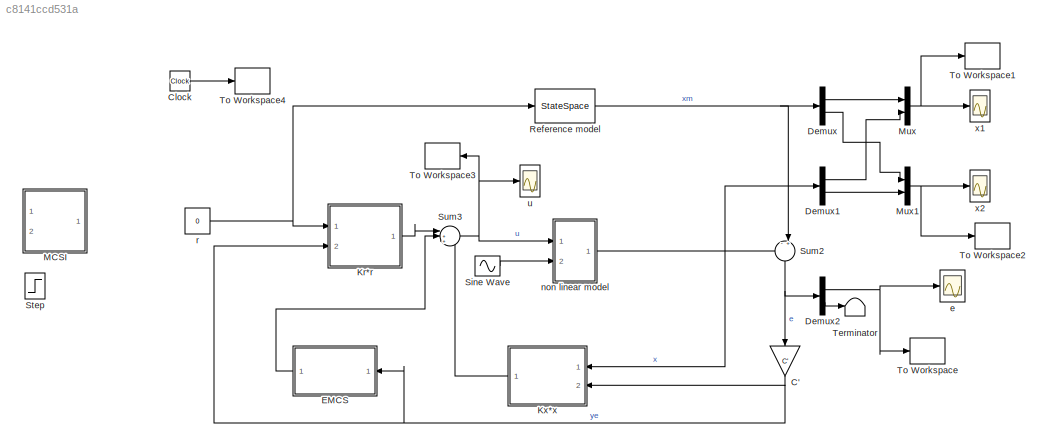
MODEL slx_c8141ccd531a
KIND model
CONFIG AbsTol = auto
CONFIG EnableMultiTasking = off
CONFIG FixedStep = auto
CONFIG InitFcn = clear\nclc\n%% dati\n%Plant\nw0 = 5.278;\nalfa1 = w0^2;\nalfa3 = -1.402*w0^2;\nalfa5 = 0.271*w0^2;\nmu1 = 0.086;\nmu3 = 0.1080;\n%% MRAC MCS\n% model reference\nta1 = 15;\nzita = 0.62;\nwn = -log(0.01)/(zita*ta1);\nAm = [0 1; -wn^2 -2*zita*wn];\nBm = [0; wn^2];\nCm = eye(2);\nDm = [0; 0];\n% control law\nB = [0; 1];\nQ = eye(2);\nP = lyap(Am',Q);\nC = P*B;\nbeta = 5;\nalfa = 10*beta;\n%disturbo\nAd = 0;\nfd = 2;\n%EMCS\ngamma ...<+43ch>
CONFIG MaxStep = 1e-3
CONFIG MinStep = auto
CONFIG RelTol = 1e-3
CONFIG SampleTimeConstraint = Unconstrained
CONFIG SolverName = VariableStepAuto
CONFIG StartTime = 0.0
CONFIG StopTime = 25
BLOCK [Gain] C'
  Gain = C'
  Multiplication = Matrix(K*u)
  NameLocation = left
BLOCK [Clock] Clock
BLOCK [Demux] Demux
  Outputs = 2
  Ports = [1, 2]
BLOCK [Demux] Demux1
  Outputs = 2
  Ports = [1, 2]
BLOCK [Demux] Demux2
  Outputs = 2
  Ports = [1, 2]
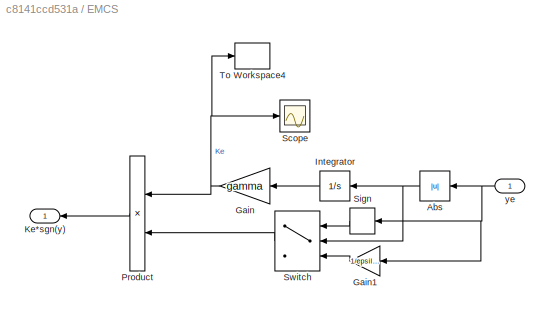
BLOCK [SubSystem] EMCS
  Ports = [1, 1]
  RequestExecContextInheritance = off
BLOCK [Abs] EMCS/Abs
  NameLocation = top
  SaturateOnIntegerOverflow = off
BLOCK [Gain] EMCS/Gain
  Gain = gamma
  NameLocation = top
BLOCK [Gain] EMCS/Gain1
  Gain = 1/epsilon
  NameLocation = top
BLOCK [Integrator] EMCS/Integrator
  NameLocation = top
  Ports = [1, 1]
BLOCK [Outport] EMCS/Ke*sgn(y)
BLOCK [Product] EMCS/Product
  NameLocation = top
  Ports = [2, 1]
BLOCK [Scope] EMCS/Scope
  Floating = off
  NumInputPorts = 1
  Ports = [1]
  ScopeSpecificationString = Simulink.scopes.TimeScopeBlockCfg('CurrentConfiguration', extmgr.ConfigurationSet(extmgr.Configuration('Core','General UI',true),extmgr.Configuration('Core','Source UI',true),extmgr.Configuration('Sources','WiredSimulink',true,'DataLoggingVariableName','ScopeData1'),extmgr.Configuration('Visuals','Time Domain',true,'SerializedDisplays',{struct('MinYLimReal','-0.78004','MaxYLimReal','7.02034','YLab...<+1390ch>
BLOCK [Signum] EMCS/Sign
  NameLocation = top
BLOCK [Switch] EMCS/Switch
  Criteria = u2 > Threshold
  InputSameDT = off
  NameLocation = top
  SaturateOnIntegerOverflow = off
  Threshold = epsilon
BLOCK [ToWorkspace] EMCS/To Workspace4
  FixptAsFi = on
  MaxDataPoints = inf
  Ports = [1]
  SampleTime = -1
  Save2DSignal = 2-D array (concatenate along first dimension)
  VariableName = Ke
BLOCK [Inport] EMCS/ye
  NameLocation = top
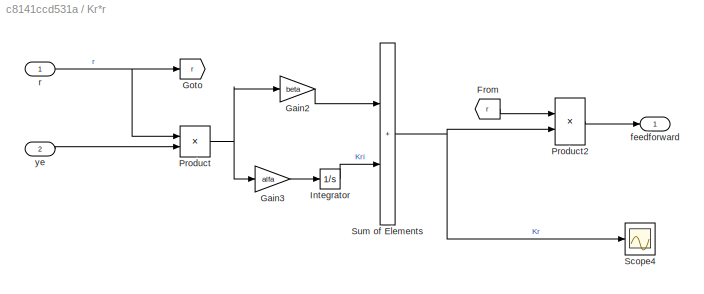
BLOCK [SubSystem] Kr*r
  Ports = [2, 1]
  RequestExecContextInheritance = off
BLOCK [From] Kr*r/From
  GotoTag = r
BLOCK [Gain] Kr*r/Gain2
  Gain = beta
BLOCK [Gain] Kr*r/Gain3
  Gain = alfa
BLOCK [Goto] Kr*r/Goto
  GotoTag = r
BLOCK [Integrator] Kr*r/Integrator
  Ports = [1, 1]
BLOCK [Product] Kr*r/Product
  Ports = [2, 1]
BLOCK [Product] Kr*r/Product2
  Ports = [2, 1]
BLOCK [Scope] Kr*r/Scope4
  Floating = off
  NumInputPorts = 1
  Ports = [1]
  ScopeSpecificationString = Simulink.scopes.TimeScopeBlockCfg('CurrentConfiguration', extmgr.ConfigurationSet(extmgr.Configuration('Core','General UI',true),extmgr.Configuration('Core','Source UI',true),extmgr.Configuration('Sources','WiredSimulink',true,'DataLoggingVariableName','ScopeData2'),extmgr.Configuration('Visuals','Time Domain',true,'SerializedDisplays',{struct('MinYLimReal','-1.00000','MaxYLimReal','1.00000','YLab...<+1390ch>
BLOCK [Sum] Kr*r/Sum of Elements
  IconShape = rectangular
  Ports = [2, 1]
BLOCK [Outport] Kr*r/feedforward
BLOCK [Inport] Kr*r/r
BLOCK [Inport] Kr*r/ye
  Port = 2
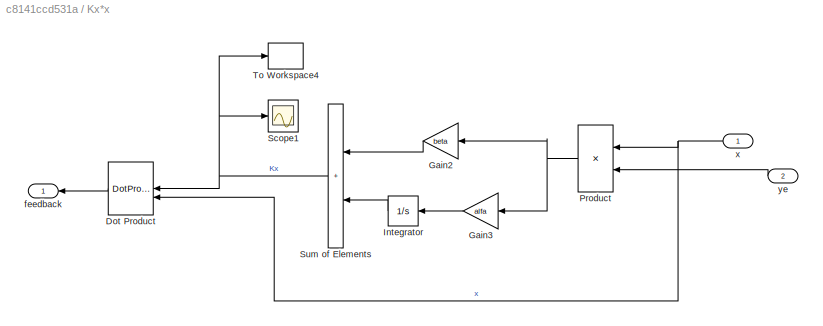
BLOCK [SubSystem] Kx*x
  NameLocation = top
  Ports = [2, 1]
  RequestExecContextInheritance = off
BLOCK [DotProduct] Kx*x/Dot Product
  NameLocation = top
  OutDataTypeStr = Inherit: Inherit via internal rule
BLOCK [Gain] Kx*x/Gain2
  Gain = beta
  NameLocation = top
BLOCK [Gain] Kx*x/Gain3
  Gain = alfa
  NameLocation = top
BLOCK [Integrator] Kx*x/Integrator
  NameLocation = top
  Ports = [1, 1]
BLOCK [Product] Kx*x/Product
  NameLocation = top
  Ports = [2, 1]
BLOCK [Scope] Kx*x/Scope1
  Floating = off
  NumInputPorts = 1
  Ports = [1]
  ScopeSpecificationString = Simulink.scopes.TimeScopeBlockCfg('CurrentConfiguration', extmgr.ConfigurationSet(extmgr.Configuration('Core','General UI',true),extmgr.Configuration('Core','Source UI',true),extmgr.Configuration('Sources','WiredSimulink',true,'DataLoggingVariableName','ScopeData5'),extmgr.Configuration('Visuals','Time Domain',true,'SerializedDisplays',{struct('MinYLimReal','-25.91284','MaxYLimReal','10.02066','YL...<+1449ch>
BLOCK [Sum] Kx*x/Sum of Elements
  IconShape = rectangular
  NameLocation = top
  Ports = [2, 1]
BLOCK [ToWorkspace] Kx*x/To Workspace4
  FixptAsFi = on
  MaxDataPoints = inf
  Ports = [1]
  SampleTime = -1
  Save2DSignal = 2-D array (concatenate along first dimension)
  VariableName = Kx
BLOCK [Outport] Kx*x/feedback
BLOCK [Inport] Kx*x/x
BLOCK [Inport] Kx*x/ye
  Port = 2
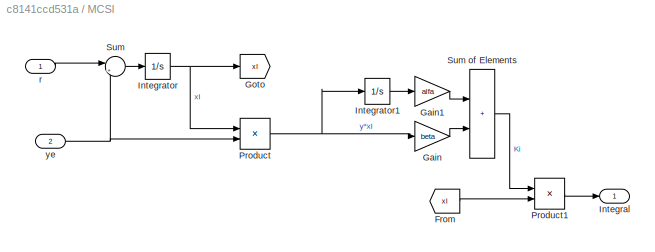
BLOCK [SubSystem] MCSI
  Commented = on
  Ports = [2, 1]
  RequestExecContextInheritance = off
BLOCK [From] MCSI/From
  GotoTag = xI
BLOCK [Gain] MCSI/Gain
  Gain = beta
BLOCK [Gain] MCSI/Gain1
  Gain = alfa
BLOCK [Goto] MCSI/Goto
  GotoTag = xI
BLOCK [Outport] MCSI/Integral
BLOCK [Integrator] MCSI/Integrator
  Ports = [1, 1]
BLOCK [Integrator] MCSI/Integrator1
  Ports = [1, 1]
BLOCK [Product] MCSI/Product
  Ports = [2, 1]
BLOCK [Product] MCSI/Product1
  Ports = [2, 1]
BLOCK [Sum] MCSI/Sum
  Inputs = |+-
  Ports = [2, 1]
BLOCK [Sum] MCSI/Sum of Elements
  IconShape = rectangular
  Ports = [2, 1]
BLOCK [Inport] MCSI/r
BLOCK [Inport] MCSI/ye
  NameLocation = top
  Port = 2
BLOCK [Mux] Mux
  DisplayOption = bar
  Inputs = 2
  Ports = [2, 1]
BLOCK [Mux] Mux1
  DisplayOption = bar
  Inputs = 2
  Ports = [2, 1]
BLOCK [StateSpace] Reference model
  A = Am
  B = Bm
  C = Cm
  D = Dm
  InitialCondition = [-1 -0.2]
  Ports = [1, 1]
BLOCK [Sin] Sine Wave
  Amplitude = Ad*0
  Frequency = fd
  Ports = [0, 1]
  SampleTime = 0
BLOCK [Step] Step
  After = 5
  Commented = on
  SampleTime = 0
  Time = 15
BLOCK [Sum] Sum2
  Inputs = -+|
  NameLocation = left
  Ports = [2, 1]
BLOCK [Sum] Sum3
  Inputs = |+++
  Ports = [3, 1]
BLOCK [Terminator] Terminator
BLOCK [ToWorkspace] To Workspace
  FixptAsFi = on
  MaxDataPoints = inf
  Ports = [1]
  SampleTime = -1
  Save2DSignal = 2-D array (concatenate along first dimension)
  VariableName = e
BLOCK [ToWorkspace] To Workspace1
  FixptAsFi = on
  MaxDataPoints = inf
  Ports = [1]
  SampleTime = -1
  Save2DSignal = 2-D array (concatenate along first dimension)
  VariableName = x1
BLOCK [ToWorkspace] To Workspace2
  FixptAsFi = on
  MaxDataPoints = inf
  Ports = [1]
  SampleTime = -1
  Save2DSignal = 2-D array (concatenate along first dimension)
  VariableName = x2
BLOCK [ToWorkspace] To Workspace3
  FixptAsFi = on
  MaxDataPoints = inf
  NameLocation = top
  Ports = [1]
  SampleTime = -1
  Save2DSignal = 2-D array (concatenate along first dimension)
  VariableName = u
BLOCK [ToWorkspace] To Workspace4
  FixptAsFi = on
  MaxDataPoints = inf
  Ports = [1]
  SampleTime = -1
  Save2DSignal = 2-D array (concatenate along first dimension)
  VariableName = t
BLOCK [Scope] e
  Floating = off
  NumInputPorts = 1
  Ports = [1]
  ScopeSpecificationString = Simulink.scopes.TimeScopeBlockCfg('CurrentConfiguration', extmgr.ConfigurationSet(extmgr.Configuration('Core','General UI',true),extmgr.Configuration('Core','Source UI',true),extmgr.Configuration('Sources','WiredSimulink',true,'DataLoggingVariableName','ScopeData3'),extmgr.Configuration('Visuals','Time Domain',true,'SerializedDisplays',{struct('MinYLimReal','-0.19375','MaxYLimReal','0.27211','YLab...<+1465ch>
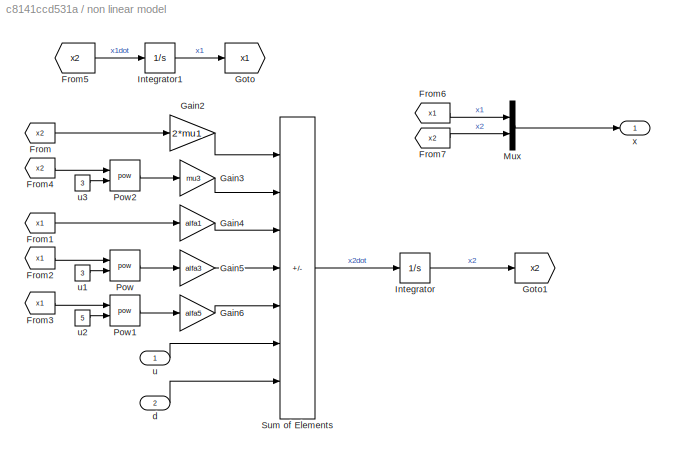
BLOCK [SubSystem] non linear model
  Ports = [2, 1]
  RequestExecContextInheritance = off
BLOCK [From] non linear model/From
  GotoTag = x2
BLOCK [From] non linear model/From1
  GotoTag = x1
BLOCK [From] non linear model/From2
  GotoTag = x1
BLOCK [From] non linear model/From3
  GotoTag = x1
BLOCK [From] non linear model/From4
  GotoTag = x2
BLOCK [From] non linear model/From5
  GotoTag = x2
BLOCK [From] non linear model/From6
  GotoTag = x1
BLOCK [From] non linear model/From7
  GotoTag = x2
BLOCK [Gain] non linear model/Gain2
  Gain = 2*mu1
BLOCK [Gain] non linear model/Gain3
  Gain = mu3
BLOCK [Gain] non linear model/Gain4
  Gain = alfa1
BLOCK [Gain] non linear model/Gain5
  Gain = alfa3
BLOCK [Gain] non linear model/Gain6
  Gain = alfa5
BLOCK [Goto] non linear model/Goto
  GotoTag = x1
BLOCK [Goto] non linear model/Goto1
  GotoTag = x2
BLOCK [Integrator] non linear model/Integrator
  InitialCondition = -0.18
  Ports = [1, 1]
BLOCK [Integrator] non linear model/Integrator1
  InitialCondition = -1.2
  Ports = [1, 1]
BLOCK [Mux] non linear model/Mux
  DisplayOption = bar
  Inputs = 2
  Ports = [2, 1]
BLOCK [Math] non linear model/Pow
  Operator = pow
  Ports = [2, 1]
  RndMeth = Zero
BLOCK [Math] non linear model/Pow1
  Operator = pow
  Ports = [2, 1]
  RndMeth = Zero
BLOCK [Math] non linear model/Pow2
  Operator = pow
  Ports = [2, 1]
  RndMeth = Zero
BLOCK [Sum] non linear model/Sum of Elements
  IconShape = rectangular
  Inputs = -----++
  Ports = [7, 1]
BLOCK [Inport] non linear model/d
  Port = 2
BLOCK [Inport] non linear model/u
BLOCK [Constant] non linear model/u1
  Value = 3
BLOCK [Constant] non linear model/u2
  Value = 5
BLOCK [Constant] non linear model/u3
  Value = 3
BLOCK [Outport] non linear model/x
BLOCK [Constant] r
  Value = 0
BLOCK [Scope] u
  Floating = off
  NumInputPorts = 1
  Ports = [1]
  ScopeSpecificationString = Simulink.scopes.TimeScopeBlockCfg('CurrentConfiguration', extmgr.ConfigurationSet(extmgr.Configuration('Core','General UI',true),extmgr.Configuration('Core','Source UI',true),extmgr.Configuration('Sources','WiredSimulink',true,'DataLoggingVariableName','ScopeData4'),extmgr.Configuration('Visuals','Time Domain',true,'SerializedDisplays',{struct('MinYLimReal','-13.04853','MaxYLimReal','24.35733','YL...<+1439ch>
BLOCK [Scope] x1
  Floating = off
  NumInputPorts = 1
  Ports = [1]
  ScopeSpecificationString = Simulink.scopes.TimeScopeBlockCfg('CurrentConfiguration', extmgr.ConfigurationSet(extmgr.Configuration('Core','General UI',true),extmgr.Configuration('Core','Source UI',true),extmgr.Configuration('Sources','WiredSimulink',true,'DataLoggingVariableName','ScopeData1'),extmgr.Configuration('Visuals','Time Domain',true,'SerializedDisplays',{struct('MinYLimReal','-0.02538','MaxYLimReal','0.0019','YLabe...<+1456ch>
BLOCK [Scope] x2
  Floating = off
  NumInputPorts = 1
  Ports = [1]
  ScopeSpecificationString = Simulink.scopes.TimeScopeBlockCfg('CurrentConfiguration', extmgr.ConfigurationSet(extmgr.Configuration('Core','General UI',true),extmgr.Configuration('Core','Source UI',true),extmgr.Configuration('Sources','WiredSimulink',true,'DataLoggingVariableName','ScopeData2'),extmgr.Configuration('Visuals','Time Domain',true,'SerializedDisplays',{struct('MinYLimReal','-0.52375','MaxYLimReal','0.49698','YLab...<+1450ch>
NET C':1 -> EMCS:1, Kr*r:2, Kx*x:2
LINE Clock:1 -> To Workspace4:1
LINE Demux1:1 -> Mux:2
LINE Demux1:2 -> Mux1:2
NET Demux2:1 -> To Workspace:1, e:1
LINE Demux2:2 -> Terminator:1
LINE Demux:1 -> Mux:1
LINE Demux:2 -> Mux1:1
NET EMCS/Abs:1 -> EMCS/Integrator:1, EMCS/Switch:2
LINE EMCS/Gain1:1 -> EMCS/Switch:3
NET EMCS/Gain:1 -> EMCS/Product:1, EMCS/Scope:1, EMCS/To Workspace4:1
LINE EMCS/Integrator:1 -> EMCS/Gain:1
LINE EMCS/Product:1 -> EMCS/Ke*sgn(y):1
LINE EMCS/Sign:1 -> EMCS/Switch:1
LINE EMCS/Switch:1 -> EMCS/Product:2
NET EMCS/ye:1 -> EMCS/Abs:1, EMCS/Gain1:1, EMCS/Sign:1
LINE EMCS:1 -> Sum3:2
LINE Kr*r/From:1 -> Kr*r/Product2:1
LINE Kr*r/Gain2:1 -> Kr*r/Sum of Elements:1
LINE Kr*r/Gain3:1 -> Kr*r/Integrator:1
LINE Kr*r/Integrator:1 -> Kr*r/Sum of Elements:2
LINE Kr*r/Product2:1 -> Kr*r/feedforward:1
NET Kr*r/Product:1 -> Kr*r/Gain2:1, Kr*r/Gain3:1
NET Kr*r/Sum of Elements:1 -> Kr*r/Product2:2, Kr*r/Scope4:1
NET Kr*r/r:1 -> Kr*r/Goto:1, Kr*r/Product:1
LINE Kr*r/ye:1 -> Kr*r/Product:2
LINE Kr*r:1 -> Sum3:1
LINE Kx*x/Dot Product:1 -> Kx*x/feedback:1
LINE Kx*x/Gain2:1 -> Kx*x/Sum of Elements:1
LINE Kx*x/Gain3:1 -> Kx*x/Integrator:1
LINE Kx*x/Integrator:1 -> Kx*x/Sum of Elements:2
NET Kx*x/Product:1 -> Kx*x/Gain2:1, Kx*x/Gain3:1
NET Kx*x/Sum of Elements:1 -> Kx*x/Dot Product:1, Kx*x/Scope1:1, Kx*x/To Workspace4:1
NET Kx*x/x:1 -> Kx*x/Dot Product:2, Kx*x/Product:1
LINE Kx*x/ye:1 -> Kx*x/Product:2
LINE Kx*x:1 -> Sum3:3
LINE MCSI/From:1 -> MCSI/Product1:2
LINE MCSI/Gain1:1 -> MCSI/Sum of Elements:1
LINE MCSI/Gain:1 -> MCSI/Sum of Elements:2
LINE MCSI/Integrator1:1 -> MCSI/Gain1:1
NET MCSI/Integrator:1 -> MCSI/Goto:1, MCSI/Product:1
LINE MCSI/Product1:1 -> MCSI/Integral:1
NET MCSI/Product:1 -> MCSI/Gain:1, MCSI/Integrator1:1
LINE MCSI/Sum of Elements:1 -> MCSI/Product1:1
LINE MCSI/Sum:1 -> MCSI/Integrator:1
LINE MCSI/r:1 -> MCSI/Sum:1
NET MCSI/ye:1 -> MCSI/Product:2, MCSI/Sum:2
NET Mux1:1 -> To Workspace2:1, x2:1
NET Mux:1 -> To Workspace1:1, x1:1
NET Reference model:1 -> Demux:1, Sum2:2
LINE Sine Wave:1 -> non linear model:2
NET Sum2:1 -> C':1, Demux2:1
NET Sum3:1 -> To Workspace3:1, non linear model:1, u:1
LINE non linear model/From1:1 -> non linear model/Gain4:1
LINE non linear model/From2:1 -> non linear model/Pow:1
LINE non linear model/From3:1 -> non linear model/Pow1:1
LINE non linear model/From4:1 -> non linear model/Pow2:1
LINE non linear model/From5:1 -> non linear model/Integrator1:1
LINE non linear model/From6:1 -> non linear model/Mux:1
LINE non linear model/From7:1 -> non linear model/Mux:2
LINE non linear model/From:1 -> non linear model/Gain2:1
LINE non linear model/Gain2:1 -> non linear model/Sum of Elements:1
LINE non linear model/Gain3:1 -> non linear model/Sum of Elements:2
LINE non linear model/Gain4:1 -> non linear model/Sum of Elements:3
LINE non linear model/Gain5:1 -> non linear model/Sum of Elements:4
LINE non linear model/Gain6:1 -> non linear model/Sum of Elements:5
LINE non linear model/Integrator1:1 -> non linear model/Goto:1
LINE non linear model/Integrator:1 -> non linear model/Goto1:1
LINE non linear model/Mux:1 -> non linear model/x:1
LINE non linear model/Pow1:1 -> non linear model/Gain6:1
LINE non linear model/Pow2:1 -> non linear model/Gain3:1
LINE non linear model/Pow:1 -> non linear model/Gain5:1
LINE non linear model/Sum of Elements:1 -> non linear model/Integrator:1
LINE non linear model/d:1 -> non linear model/Sum of Elements:7
LINE non linear model/u1:1 -> non linear model/Pow:2
LINE non linear model/u2:1 -> non linear model/Pow1:2
LINE non linear model/u3:1 -> non linear model/Pow2:2
LINE non linear model/u:1 -> non linear model/Sum of Elements:6
NET non linear model:1 -> Demux1:1, Kx*x:1, Sum2:1
NET r:1 -> Kr*r:1, Reference model:1
note: NET lines group one-source signal fan-out (src -> all destinations, sorted); 1:1 wires keep LINE
